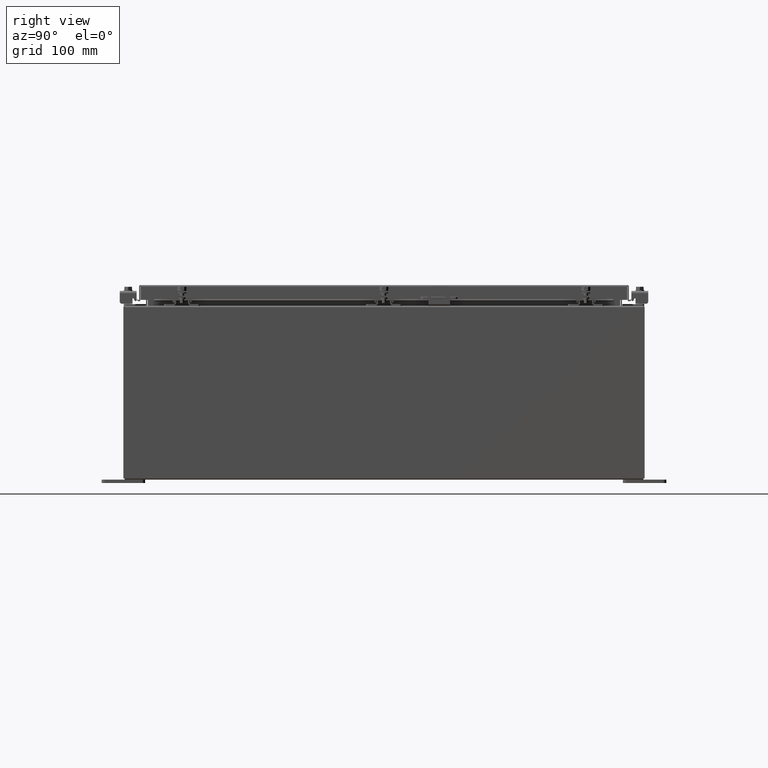
[diagram: clean part render]
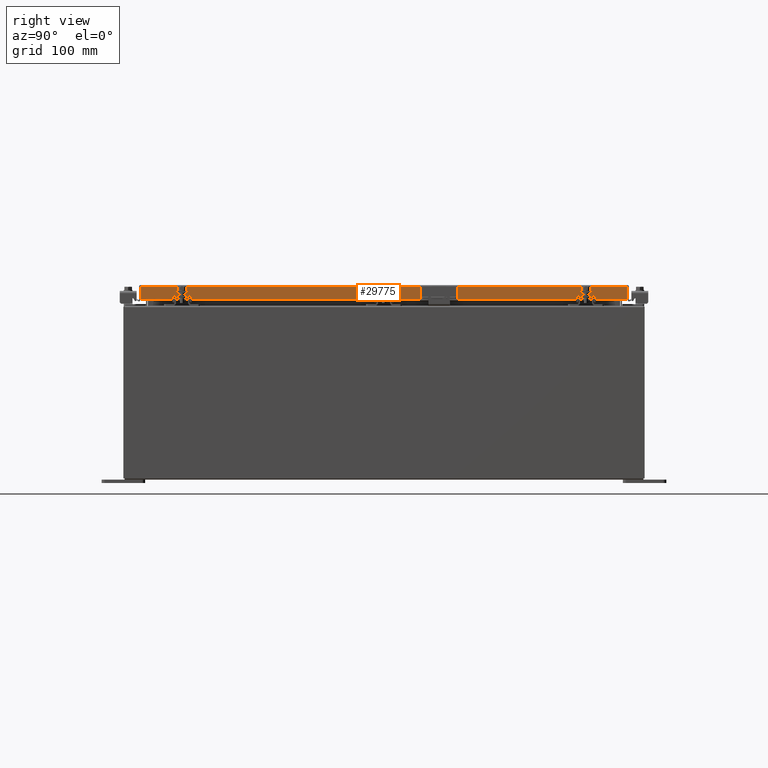
[diagram: same view with one face highlighted and labeled with its STEP entity id]
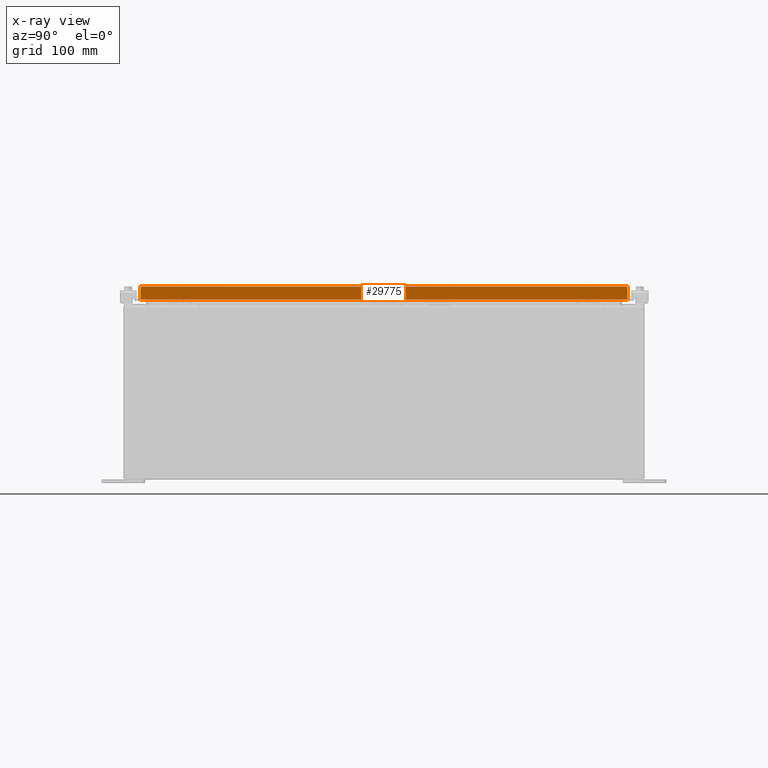
[diagram: x-ray of the same camera — body ghosted, the highlighted face saturated]
A machine part, right view. The second image highlights one B-rep face of the part: STEP entity #29775.
The next image is the same camera in x-ray: the body ghosted, the highlighted face saturated — about 0% of this face is hidden behind the body in this view.
In plain terms, the highlighted planar face has unit normal (1, 0, 0).
Its self-contained STEP definition (entity closure, byte-faithful):
#75 = DIRECTION ( 'NONE',  ( 1.000000000000000000, 0.0000000000000000000, 2.818880942772360100E-015 ) ) ;
#838 = CARTESIAN_POINT ( 'NONE',  ( 11.07800000000000300, 14.00515786437627200, -0.8499999999999999800 ) ) ;
#1079 = DIRECTION ( 'NONE',  ( 0.0000000000000000000, -1.000000000000000000, 0.0000000000000000000 ) ) ;
#1856 = VERTEX_POINT ( 'NONE', #838 ) ;
#2187 = EDGE_CURVE ( 'NONE', #23768, #5957, #26074, .T. ) ;
#2352 = CARTESIAN_POINT ( 'NONE',  ( 11.07800000000000300, -14.09399999999999900, -0.8499999999999999800 ) ) ;
#5288 = DIRECTION ( 'NONE',  ( -2.818880942772360100E-015, -6.982962677686265900E-015, 1.000000000000000000 ) ) ;
#5680 = CARTESIAN_POINT ( 'NONE',  ( 11.07800000000000300, -14.00515786437626400, -0.8499999999999999800 ) ) ;
#5862 = LINE ( 'NONE', #14207, #28278 ) ;
#5957 = VERTEX_POINT ( 'NONE', #5680 ) ;
#6784 = ORIENTED_EDGE ( 'NONE', *, *, #2187, .F. ) ;
#6800 = LINE ( 'NONE', #17616, #37002 ) ;
#7749 = ORIENTED_EDGE ( 'NONE', *, *, #31023, .F. ) ;
#7795 = ORIENTED_EDGE ( 'NONE', *, *, #24513, .T. ) ;
#8894 = DIRECTION ( 'NONE',  ( 0.0000000000000000000, -1.000000000000000000, 0.0000000000000000000 ) ) ;
#10079 = EDGE_CURVE ( 'NONE', #5957, #10843, #5862, .T. ) ;
#10843 = VERTEX_POINT ( 'NONE', #17743 ) ;
#10873 = ORIENTED_EDGE ( 'NONE', *, *, #30633, .F. ) ;
#12222 = CARTESIAN_POINT ( 'NONE',  ( 11.07799999999999900, 0.0000000000000000000, -0.08770000000000026400 ) ) ;
#14207 = CARTESIAN_POINT ( 'NONE',  ( 11.07799999999999900, -14.00515786437626900, -0.07470000000000015500 ) ) ;
#14741 = CARTESIAN_POINT ( 'NONE',  ( 11.07799999999999400, 13.25515786437627200, -0.8500000000000020900 ) ) ;
#15099 = LINE ( 'NONE', #14741, #29777 ) ;
#17378 = VECTOR ( 'NONE', #34479, 39.37007874015748100 ) ;
#17488 = CARTESIAN_POINT ( 'NONE',  ( 11.07799999999999900, 0.0000000000000000000, 3.059669752903974500E-014 ) ) ;
#17616 = CARTESIAN_POINT ( 'NONE',  ( 11.07799999999999900, 14.00515786437626900, 1.289432253009532300E-013 ) ) ;
#17743 = CARTESIAN_POINT ( 'NONE',  ( 11.07799999999999900, -14.00515786437626900, -0.08770000000000026400 ) ) ;
#20177 = VECTOR ( 'NONE', #1079, 39.37007874015748100 ) ;
#20558 = DIRECTION ( 'NONE',  ( 2.818880942772360100E-015, 0.0000000000000000000, -1.000000000000000000 ) ) ;
#22164 = VERTEX_POINT ( 'NONE', #33003 ) ;
#22326 = VERTEX_POINT ( 'NONE', #24948 ) ;
#22665 = ORIENTED_EDGE ( 'NONE', *, *, #10079, .F. ) ;
#23768 = VERTEX_POINT ( 'NONE', #37869 ) ;
#24013 = VECTOR ( 'NONE', #32682, 39.37007874015748100 ) ;
#24513 = EDGE_CURVE ( 'NONE', #22326, #10843, #30925, .T. ) ;
#24948 = CARTESIAN_POINT ( 'NONE',  ( 11.07799999999999900, 14.00515786437626500, -0.08770000000000026400 ) ) ;
#26074 = LINE ( 'NONE', #2352, #17378 ) ;
#26430 = DIRECTION ( 'NONE',  ( -2.818880942772360100E-015, -6.982962677686265900E-015, 1.000000000000000000 ) ) ;
#27938 = LINE ( 'NONE', #30784, #20177 ) ;
#28278 = VECTOR ( 'NONE', #5288, 39.37007874015748100 ) ;
#29143 = AXIS2_PLACEMENT_3D ( 'NONE', #17488, #75, #20558 ) ;
#29775 = ADVANCED_FACE ( 'NONE', ( #32146 ), #35130, .T. ) ;
#29777 = VECTOR ( 'NONE', #8894, 39.37007874015748100 ) ;
#30633 = EDGE_CURVE ( 'NONE', #1856, #22164, #27938, .T. ) ;
#30784 = CARTESIAN_POINT ( 'NONE',  ( 11.07800000000000300, -14.09399999999999900, -0.8499999999999999800 ) ) ;
#30925 = LINE ( 'NONE', #12222, #24013 ) ;
#31023 = EDGE_CURVE ( 'NONE', #22164, #23768, #15099, .T. ) ;
#32146 = FACE_OUTER_BOUND ( 'NONE', #36271, .T. ) ;
#32682 = DIRECTION ( 'NONE',  ( 0.0000000000000000000, -1.000000000000000000, 0.0000000000000000000 ) ) ;
#33003 = CARTESIAN_POINT ( 'NONE',  ( 11.07799999999999400, 13.25515786437626500, -0.8500000000000020900 ) ) ;
#33746 = ORIENTED_EDGE ( 'NONE', *, *, #37526, .T. ) ;
#34479 = DIRECTION ( 'NONE',  ( 0.0000000000000000000, -1.000000000000000000, 0.0000000000000000000 ) ) ;
#35130 = PLANE ( 'NONE',  #29143 ) ;
#36271 = EDGE_LOOP ( 'NONE', ( #22665, #6784, #7749, #10873, #33746, #7795 ) ) ;
#37002 = VECTOR ( 'NONE', #26430, 39.37007874015748100 ) ;
#37526 = EDGE_CURVE ( 'NONE', #1856, #22326, #6800, .T. ) ;
#37869 = CARTESIAN_POINT ( 'NONE',  ( 11.07799999999999400, -13.25515786437626400, -0.8500000000000020900 ) ) ;